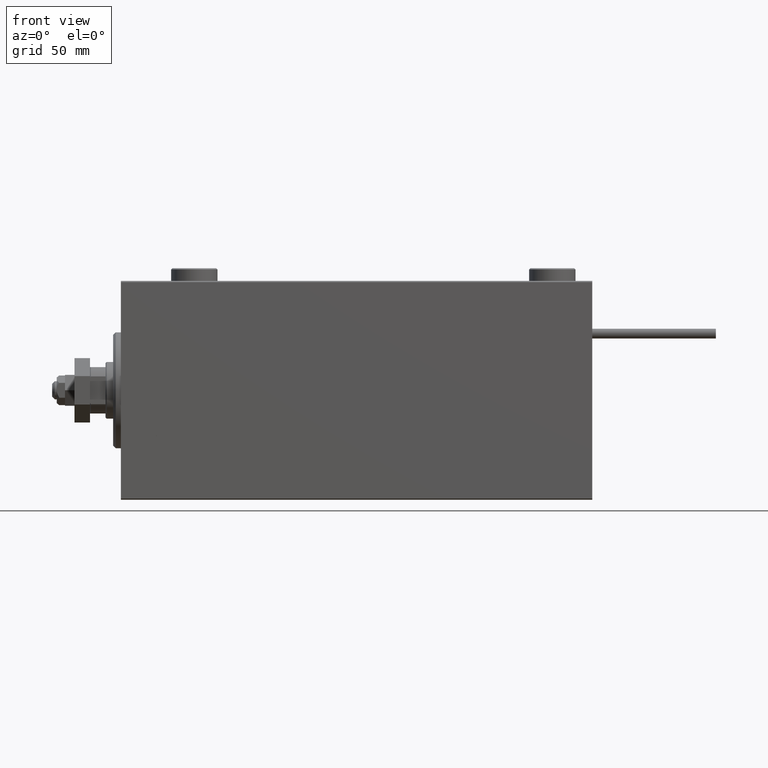
[diagram: clean part render]
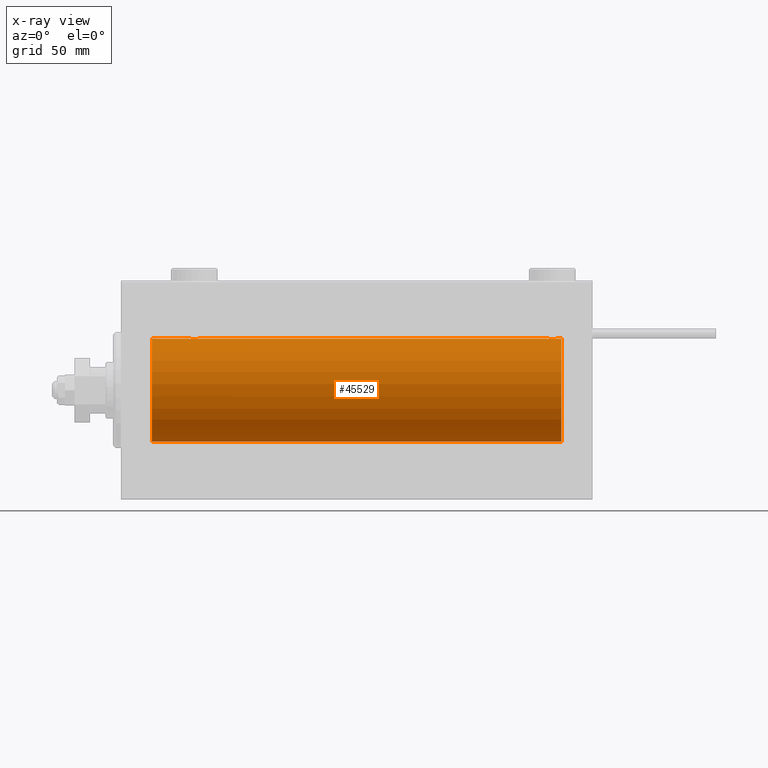
[diagram: x-ray — body ghosted, one internal face saturated and labeled with its STEP entity id]
A machine part, front view, then the same camera in x-ray: the body is ghosted and one INTERNAL B-rep face — a face not visible from any outside direction — is saturated and labeled: STEP entity #45529.
In plain terms, the highlighted cylindrical surface (partial cylindrical patch) has radius 20 mm, axis along (-1, -0, -0).
Its self-contained STEP definition (entity closure, byte-faithful):
#136 = CARTESIAN_POINT ( 'NONE',  ( 168.7180541947215033, -1.591668229360197806, 19.93669678979812687 ) ) ;
#769 = CARTESIAN_POINT ( 'NONE',  ( 29.14348528733041377, -1.898187925611340310, 19.90978194174746818 ) ) ;
#813 = CARTESIAN_POINT ( 'NONE',  ( 30.09941524884030173, -1.228758402364235502, -19.96307487248084911 ) ) ;
#1298 = CARTESIAN_POINT ( 'NONE',  ( 30.24686976303071617, -1.008108445278690146, 19.97602680192586533 ) ) ;
#1554 = CARTESIAN_POINT ( 'NONE',  ( 30.49999999999997868, -0.2644051013330948052, 19.99999999999999645 ) ) ;
#1907 = EDGE_CURVE ( 'NONE', #30042, #47258, #42240, .T. ) ;
#1925 = DIRECTION ( 'NONE',  ( -1.000000000000000000, -0.000000000000000000, -0.000000000000000000 ) ) ;
#2769 = CARTESIAN_POINT ( 'NONE',  ( 171.0000000000000000, 2.449293598294706513E-15, -20.00000000000000000 ) ) ;
#2909 = CARTESIAN_POINT ( 'NONE',  ( 26.50000000000000355, -3.809869420541414000E-15, -20.00000000000000000 ) ) ;
#3097 = CARTESIAN_POINT ( 'NONE',  ( 166.2819458052784398, -1.591668229360214903, -19.93669678979811977 ) ) ;
#3291 = DIRECTION ( 'NONE',  ( -1.000000000000000000, -0.000000000000000000, -0.000000000000000000 ) ) ;
#3359 = CARTESIAN_POINT ( 'NONE',  ( 168.1463067392464268, -1.897222639860608906, -19.90987429971496070 ) ) ;
#3595 = CARTESIAN_POINT ( 'NONE',  ( 165.4999999999999716, -1.553188236289650144E-23, 20.00000000000000000 ) ) ;
#3610 = CARTESIAN_POINT ( 'NONE',  ( 167.7607725603156439, -1.987205673487804747, 19.90104673894209952 ) ) ;
#4114 = VERTEX_POINT ( 'NONE', #51336 ) ;
#4131 = CARTESIAN_POINT ( 'NONE',  ( 168.1434852873303782, -1.898187925611334093, 19.90978194174746463 ) ) ;
#4665 = CARTESIAN_POINT ( 'NONE',  ( 166.1769333108053104, -1.505486175075775979, 19.94347168299867690 ) ) ;
#5013 = CARTESIAN_POINT ( 'NONE',  ( 27.17693331080530683, -1.505486175075772426, 19.94347168299868045 ) ) ;
#5057 = CARTESIAN_POINT ( 'NONE',  ( 29.82306668919470383, -1.505486175075772870, -19.94347168299867334 ) ) ;
#5270 = CARTESIAN_POINT ( 'NONE',  ( 28.63058871710834552, -2.000100592782554809, 19.89973863218036598 ) ) ;
#5536 = CARTESIAN_POINT ( 'NONE',  ( 29.71805419472151044, -1.591668229360198028, 19.93669678979812332 ) ) ;
#5714 = EDGE_CURVE ( 'NONE', #12869, #18876, #31375, .T. ) ;
#5802 = CARTESIAN_POINT ( 'NONE',  ( 27.27971054205536205, -1.589957321664209111, 19.93683391378736403 ) ) ;
#5848 = CARTESIAN_POINT ( 'NONE',  ( 26.90225308445269903, -1.230936344679278260, -19.96293863536309132 ) ) ;
#6194 = DIRECTION ( 'NONE',  ( -1.000000000000000000, 0.000000000000000000, 0.000000000000000000 ) ) ;
#6368 = CARTESIAN_POINT ( 'NONE',  ( 26.50000000000001066, -0.2644051013331030209, -20.00000000000000355 ) ) ;
#6959 = VERTEX_POINT ( 'NONE', #7240 ) ;
#7240 = CARTESIAN_POINT ( 'NONE',  ( 12.00000000000001066, 2.449293598294706513E-15, -20.00000000000000000 ) ) ;
#7355 = CARTESIAN_POINT ( 'NONE',  ( 168.5030655633959782, -1.735203193119897014, -19.92471783160911158 ) ) ;
#7838 = LINE ( 'NONE', #32258, #8569 ) ;
#7866 = CARTESIAN_POINT ( 'NONE',  ( 167.3663480385754667, -1.999898234284060772, 19.89975896996866211 ) ) ;
#8132 = CARTESIAN_POINT ( 'NONE',  ( 165.4999999999999716, -0.2610801504281912711, 19.99999999999999645 ) ) ;
#8152 = CARTESIAN_POINT ( 'NONE',  ( 166.9835146708108766, -1.936551476643014080, -19.90603968831098669 ) ) ;
#8569 = VECTOR ( 'NONE', #28534, 1000.000000000000000 ) ;
#8652 = AXIS2_PLACEMENT_3D ( 'NONE', #24307, #37043, #36258 ) ;
#8800 = CARTESIAN_POINT ( 'NONE',  ( 30.24825913460018612, -1.005710574260838985, -19.97614991974274190 ) ) ;
#8911 = CARTESIAN_POINT ( 'NONE',  ( 168.3857907667072595, -1.797933656607912489, 19.91908554465557657 ) ) ;
#9010 = CARTESIAN_POINT ( 'NONE',  ( 27.98076487864723205, -1.935816449315125531, 19.90611141657401717 ) ) ;
#9375 = LINE ( 'NONE', #10177, #31927 ) ;
#9540 = CARTESIAN_POINT ( 'NONE',  ( 30.44679484191798124, -0.5270924491156734337, 19.99450181871975829 ) ) ;
#9683 = VERTEX_POINT ( 'NONE', #28027 ) ;
#10076 = CARTESIAN_POINT ( 'NONE',  ( 27.61170562792908711, -1.796691196322317996, 19.91919800395357143 ) ) ;
#10177 = CARTESIAN_POINT ( 'NONE',  ( 171.0000000000000000, 0.000000000000000000, 20.00000000000000000 ) ) ;
#10368 = CIRCLE ( 'NONE', #35784, 20.00000000000000000 ) ;
#10382 = CARTESIAN_POINT ( 'NONE',  ( 26.75313023696928738, -1.008108445278687704, -19.97602680192586533 ) ) ;
#10469 = ORIENTED_EDGE ( 'NONE', *, *, #32610, .F. ) ;
#11082 = CARTESIAN_POINT ( 'NONE',  ( 165.4999999999999716, -1.510525576716094838E-14, -20.00000000000000000 ) ) ;
#11357 = CARTESIAN_POINT ( 'NONE',  ( 165.5532051580820223, -0.5270924491156762093, -19.99450181871976184 ) ) ;
#12199 = EDGE_CURVE ( 'NONE', #18876, #6959, #7838, .T. ) ;
#12869 = VERTEX_POINT ( 'NONE', #45425 ) ;
#13192 = CARTESIAN_POINT ( 'NONE',  ( 30.50000000000000000, -6.994834070630008937E-15, 20.00000000000000000 ) ) ;
#14099 = CARTESIAN_POINT ( 'NONE',  ( 27.17903093152710525, -1.507328959728492457, -19.94333197382385592 ) ) ;
#14386 = ORIENTED_EDGE ( 'NONE', *, *, #48821, .T. ) ;
#14563 = LINE ( 'NONE', #43503, #39702 ) ;
#14809 = CARTESIAN_POINT ( 'NONE',  ( 169.0994152488403302, -1.228758402364252822, -19.96307487248083845 ) ) ;
#15611 = CARTESIAN_POINT ( 'NONE',  ( 167.7635814409141233, -1.986835489085827966, -19.90108393514800511 ) ) ;
#16044 = CARTESIAN_POINT ( 'NONE',  ( 26.50000000000000355, -1.552636033655995435E-23, 20.00000000000000000 ) ) ;
#16372 = CARTESIAN_POINT ( 'NONE',  ( 166.8536932607535448, -1.897222639860593363, 19.90987429971496780 ) ) ;
#16684 = B_SPLINE_CURVE_WITH_KNOTS ( 'NONE', 3,
 ( #28024, #8132, #37055, #41039, #40520, #4665, #45051, #40783, #33082, #16372, #20347, #20863, #7866, #32819, #3610, #48516, #4131, #8911, #44259, #136, #24846, #52494, #16889, #24060, #20079, #49300 ),
 .UNSPECIFIED., .F., .F.,
 ( 4, 2, 2, 2, 2, 2, 2, 2, 2, 2, 2, 2, 4 ),
 ( 0.006256819553329837080, 0.007038738568778794141, 0.007820657584227751202, 0.008211617091952229733, 0.008602576599676708263, 0.008993536107401185059, 0.009384495615125663590, 0.009775455122850142120, 0.01016641463057462239, 0.01055737413829909918, 0.01094833364602357945, 0.01173025266147259202, 0.01251217167692160633 ),
 .UNSPECIFIED. ) ;
#16889 = CARTESIAN_POINT ( 'NONE',  ( 169.2468697630307020, -1.008108445278671050, 19.97602680192585822 ) ) ;
#16898 = CIRCLE ( 'NONE', #23556, 20.00000000000000000 ) ;
#17256 = CARTESIAN_POINT ( 'NONE',  ( 26.50000000000000711, -0.2610801504281919927, 20.00000000000000000 ) ) ;
#17260 = VECTOR ( 'NONE', #48267, 1000.000000000000000 ) ;
#17771 = CARTESIAN_POINT ( 'NONE',  ( 30.09774691554729742, -1.230936344679279371, 19.96293863536309487 ) ) ;
#17855 = EDGE_CURVE ( 'NONE', #28303, #4114, #31309, .T. ) ;
#18876 = VERTEX_POINT ( 'NONE', #2909 ) ;
#18948 = DIRECTION ( 'NONE',  ( 0.000000000000000000, 0.000000000000000000, 1.000000000000000000 ) ) ;
#19093 = ORIENTED_EDGE ( 'NONE', *, *, #33720, .F. ) ;
#19576 = CARTESIAN_POINT ( 'NONE',  ( 167.2392274396842424, -1.987205673487821178, -19.90104673894210308 ) ) ;
#19642 = ORIENTED_EDGE ( 'NONE', *, *, #30125, .F. ) ;
#19856 = DIRECTION ( 'NONE',  ( -1.000000000000000000, -0.000000000000000000, -0.000000000000000000 ) ) ;
#19907 = LINE ( 'NONE', #20432, #37120 ) ;
#20079 = CARTESIAN_POINT ( 'NONE',  ( 169.5000000000000000, -0.2644051013331001898, 20.00000000000000355 ) ) ;
#20347 = CARTESIAN_POINT ( 'NONE',  ( 166.9807648786472782, -1.935816449315131527, 19.90611141657401717 ) ) ;
#20432 = CARTESIAN_POINT ( 'NONE',  ( 171.0000000000000000, 0.000000000000000000, 20.00000000000000000 ) ) ;
#20863 = CARTESIAN_POINT ( 'NONE',  ( 167.2364185590859051, -1.986835489085816198, 19.90108393514801222 ) ) ;
#21216 = CARTESIAN_POINT ( 'NONE',  ( 29.50067219139244301, -1.736582545981377290, 19.92459705242981371 ) ) ;
#21262 = CARTESIAN_POINT ( 'NONE',  ( 29.72028945794465571, -1.589957321664208223, -19.93683391378736047 ) ) ;
#21479 = CARTESIAN_POINT ( 'NONE',  ( 29.38579076670729151, -1.797933656607919817, 19.91908554465558367 ) ) ;
#21740 = CARTESIAN_POINT ( 'NONE',  ( 30.50000000000000000, -6.994834070630008937E-15, 20.00000000000000000 ) ) ;
#22056 = CARTESIAN_POINT ( 'NONE',  ( 27.49932780860757475, -1.736582545981376180, -19.92459705242981371 ) ) ;
#22551 = VERTEX_POINT ( 'NONE', #51710 ) ;
#22574 = CARTESIAN_POINT ( 'NONE',  ( 27.85651471266959334, -1.898187925611338533, -19.90978194174746818 ) ) ;
#22747 = VERTEX_POINT ( 'NONE', #3595 ) ;
#23488 = LINE ( 'NONE', #2769, #36617 ) ;
#23556 = AXIS2_PLACEMENT_3D ( 'NONE', #50330, #6194, #18948 ) ;
#23817 = CARTESIAN_POINT ( 'NONE',  ( 168.8230666891946896, -1.505486175075791966, -19.94347168299867690 ) ) ;
#24060 = CARTESIAN_POINT ( 'NONE',  ( 169.4467948419179493, -0.5270924491156545599, 19.99450181871975829 ) ) ;
#24078 = CARTESIAN_POINT ( 'NONE',  ( 167.6336519614244764, -1.999898234284076981, -19.89975896996866211 ) ) ;
#24307 = CARTESIAN_POINT ( 'NONE',  ( 171.0000000000000000, 0.000000000000000000, 0.000000000000000000 ) ) ;
#24318 = EDGE_CURVE ( 'NONE', #22747, #22551, #16684, .T. ) ;
#24563 = ORIENTED_EDGE ( 'NONE', *, *, #12199, .T. ) ;
#24846 = CARTESIAN_POINT ( 'NONE',  ( 168.8209690684728628, -1.507328959728491347, 19.94333197382385592 ) ) ;
#25461 = CARTESIAN_POINT ( 'NONE',  ( 27.49693443660397563, -1.735203193119895460, 19.92471783160911869 ) ) ;
#25724 = CARTESIAN_POINT ( 'NONE',  ( 28.76077256031568297, -1.987205673487810298, 19.90104673894211018 ) ) ;
#25766 = CARTESIAN_POINT ( 'NONE',  ( 169.4999999999999432, -0.2610801504281899388, -19.99999999999999645 ) ) ;
#25770 = CARTESIAN_POINT ( 'NONE',  ( 28.63365196142448355, -1.999898234284062992, -19.89975896996866211 ) ) ;
#26025 = CARTESIAN_POINT ( 'NONE',  ( 28.76358144091416236, -1.986835489085814199, -19.90108393514801222 ) ) ;
#26307 = ORIENTED_EDGE ( 'NONE', *, *, #5714, .T. ) ;
#28024 = CARTESIAN_POINT ( 'NONE',  ( 165.4999999999999716, -1.553188236289650144E-23, 20.00000000000000000 ) ) ;
#28027 = CARTESIAN_POINT ( 'NONE',  ( 12.00000000000001066, 0.000000000000000000, 20.00000000000000000 ) ) ;
#28043 = CARTESIAN_POINT ( 'NONE',  ( 165.7531302369692980, -1.008108445278692589, -19.97602680192585822 ) ) ;
#28286 = FACE_OUTER_BOUND ( 'NONE', #45667, .T. ) ;
#28303 = VERTEX_POINT ( 'NONE', #44316 ) ;
#28315 = CARTESIAN_POINT ( 'NONE',  ( 168.7202894579446593, -1.589957321664208001, -19.93683391378736403 ) ) ;
#28534 = DIRECTION ( 'NONE',  ( -1.000000000000000000, -0.000000000000000000, -0.000000000000000000 ) ) ;
#29477 = CARTESIAN_POINT ( 'NONE',  ( 27.61420923329272981, -1.797933656607917596, -19.91908554465558367 ) ) ;
#29808 = CARTESIAN_POINT ( 'NONE',  ( 12.00000000000001066, 0.000000000000000000, 0.000000000000000000 ) ) ;
#30042 = VERTEX_POINT ( 'NONE', #16044 ) ;
#30125 = EDGE_CURVE ( 'NONE', #35438, #22551, #9375, .T. ) ;
#30269 = CARTESIAN_POINT ( 'NONE',  ( 26.55320515808203297, -0.5270924491156698810, -19.99450181871976184 ) ) ;
#30561 = ORIENTED_EDGE ( 'NONE', *, *, #49413, .T. ) ;
#31309 = LINE ( 'NONE', #43285, #17260 ) ;
#31375 = B_SPLINE_CURVE_WITH_KNOTS ( 'NONE', 3,
 ( #39693, #45197, #41445, #8800, #813, #5057, #21262, #37465, #31449, #47695, #41983, #26025, #25770, #42245, #34275, #50505, #22574, #29477, #22056, #41709, #14099, #5848, #10382, #30269, #6368, #50754 ),
 .UNSPECIFIED., .F., .F.,
 ( 4, 2, 2, 2, 2, 2, 2, 2, 2, 2, 2, 2, 4 ),
 ( 0.006256819553329842284, 0.007038738568778818427, 0.007820657584227792836, 0.008211617091952278305, 0.008602576599676762040, 0.008993536107401245774, 0.009384495615125729509, 0.009775455122850213244, 0.01016641463057469871, 0.01055737413829918071, 0.01094833364602366618, 0.01173025266147263365, 0.01251217167692159939 ),
 .UNSPECIFIED. ) ;
#31449 = CARTESIAN_POINT ( 'NONE',  ( 29.38829437207091999, -1.796691196322316664, -19.91919800395357143 ) ) ;
#31927 = VECTOR ( 'NONE', #1925, 1000.000000000000000 ) ;
#32258 = CARTESIAN_POINT ( 'NONE',  ( 171.0000000000000000, 2.449293598294706513E-15, -20.00000000000000000 ) ) ;
#32610 = EDGE_CURVE ( 'NONE', #30042, #9683, #19907, .T. ) ;
#32819 = CARTESIAN_POINT ( 'NONE',  ( 167.6305887171083668, -2.000100592782551701, 19.89973863218036598 ) ) ;
#33082 = CARTESIAN_POINT ( 'NONE',  ( 166.6117056279290694, -1.796691196322314443, 19.91919800395357143 ) ) ;
#33486 = CARTESIAN_POINT ( 'NONE',  ( 169.4999999999999716, 2.449293582762473501E-15, -20.00000000000000000 ) ) ;
#33699 = CARTESIAN_POINT ( 'NONE',  ( 29.01648532918904522, -1.936551476643006087, 19.90603968831098314 ) ) ;
#33720 = EDGE_CURVE ( 'NONE', #22747, #47258, #14563, .T. ) ;
#34072 = DIRECTION ( 'NONE',  ( -1.000000000000000000, 0.000000000000000000, 0.000000000000000000 ) ) ;
#34227 = CARTESIAN_POINT ( 'NONE',  ( 26.90058475115969472, -1.228758402364234392, 19.96307487248084556 ) ) ;
#34275 = CARTESIAN_POINT ( 'NONE',  ( 28.23922743968432059, -1.987205673487808966, -19.90104673894211018 ) ) ;
#34986 = CARTESIAN_POINT ( 'NONE',  ( 169.4475506288250415, -0.5243189001515055070, -19.99457699142850231 ) ) ;
#35249 = CARTESIAN_POINT ( 'NONE',  ( 168.3882943720709022, -1.796691196322330653, -19.91919800395357143 ) ) ;
#35393 = ORIENTED_EDGE ( 'NONE', *, *, #17855, .T. ) ;
#35438 = VERTEX_POINT ( 'NONE', #44156 ) ;
#35462 = ORIENTED_EDGE ( 'NONE', *, *, #36193, .F. ) ;
#35503 = CARTESIAN_POINT ( 'NONE',  ( 166.1790309315270804, -1.507328959728508666, -19.94333197382385947 ) ) ;
#35784 = AXIS2_PLACEMENT_3D ( 'NONE', #29808, #34072, #50306 ) ;
#36095 = DIRECTION ( 'NONE',  ( -1.000000000000000000, -0.000000000000000000, -0.000000000000000000 ) ) ;
#36193 = EDGE_CURVE ( 'NONE', #28303, #35438, #16898, .T. ) ;
#36258 = DIRECTION ( 'NONE',  ( 0.000000000000000000, 0.000000000000000000, 1.000000000000000000 ) ) ;
#36617 = VECTOR ( 'NONE', #3291, 1000.000000000000000 ) ;
#37043 = DIRECTION ( 'NONE',  ( -1.000000000000000000, -0.000000000000000000, -0.000000000000000000 ) ) ;
#37055 = CARTESIAN_POINT ( 'NONE',  ( 165.5524493711749301, -0.5243189001515013992, 19.99457699142850231 ) ) ;
#37120 = VECTOR ( 'NONE', #36095, 1000.000000000000000 ) ;
#37157 = CARTESIAN_POINT ( 'NONE',  ( 28.36634803857552001, -1.999898234284063436, 19.89975896996866211 ) ) ;
#37465 = CARTESIAN_POINT ( 'NONE',  ( 29.50306556339602437, -1.735203193119894349, -19.92471783160910803 ) ) ;
#37683 = CARTESIAN_POINT ( 'NONE',  ( 29.82096906847289830, -1.507328959728492901, 19.94333197382385592 ) ) ;
#38210 = CARTESIAN_POINT ( 'NONE',  ( 26.50000000000000355, -1.552636033655995435E-23, 20.00000000000000000 ) ) ;
#39693 = CARTESIAN_POINT ( 'NONE',  ( 30.50000000000000000, 2.449293582768389958E-15, -20.00000000000000000 ) ) ;
#39702 = VECTOR ( 'NONE', #19856, 1000.000000000000000 ) ;
#39993 = CYLINDRICAL_SURFACE ( 'NONE', #8652, 20.00000000000000000 ) ;
#40019 = CARTESIAN_POINT ( 'NONE',  ( 165.5000000000000284, -0.2644051013331212840, -20.00000000000000000 ) ) ;
#40520 = CARTESIAN_POINT ( 'NONE',  ( 165.9005847511596698, -1.228758402364239499, 19.96307487248084556 ) ) ;
#40783 = CARTESIAN_POINT ( 'NONE',  ( 166.4969344366039934, -1.735203193119897236, 19.92471783160911514 ) ) ;
#41039 = CARTESIAN_POINT ( 'NONE',  ( 165.7517408653997677, -1.005710574260841650, 19.97614991974273835 ) ) ;
#41445 = CARTESIAN_POINT ( 'NONE',  ( 30.44755062882508412, -0.5243189001514996228, -19.99457699142849876 ) ) ;
#41661 = CARTESIAN_POINT ( 'NONE',  ( 27.85369326075355545, -1.897222639860595583, 19.90987429971497491 ) ) ;
#41709 = CARTESIAN_POINT ( 'NONE',  ( 27.28194580527848601, -1.591668229360197140, -19.93669678979812332 ) ) ;
#41983 = CARTESIAN_POINT ( 'NONE',  ( 29.01923512135276795, -1.935816449315124643, -19.90611141657401717 ) ) ;
#42009 = VERTEX_POINT ( 'NONE', #50289 ) ;
#42198 = CARTESIAN_POINT ( 'NONE',  ( 26.75174086539981033, -1.005710574260840318, 19.97614991974274190 ) ) ;
#42240 = B_SPLINE_CURVE_WITH_KNOTS ( 'NONE', 3,
 ( #38210, #17256, #45673, #42198, #34227, #5013, #5802, #25461, #10076, #41661, #9010, #45938, #37157, #5270, #25724, #33699, #769, #21479, #21216, #5536, #37683, #17771, #1298, #9540, #1554, #21740 ),
 .UNSPECIFIED., .F., .F.,
 ( 4, 2, 2, 2, 2, 2, 2, 2, 2, 2, 2, 2, 4 ),
 ( 0.006256819553329787641, 0.007038738568778755977, 0.007820657584227725181, 0.008211617091952205447, 0.008602576599676685712, 0.008993536107401164242, 0.009384495615125644508, 0.009775455122850124773, 0.01016641463057460504, 0.01055737413829908530, 0.01094833364602356557, 0.01173025266147252610, 0.01251217167692148663 ),
 .UNSPECIFIED. ) ;
#42245 = CARTESIAN_POINT ( 'NONE',  ( 28.36941128289166159, -2.000100592782553921, -19.89973863218036598 ) ) ;
#43285 = CARTESIAN_POINT ( 'NONE',  ( 171.0000000000000000, 2.449293598294706513E-15, -20.00000000000000000 ) ) ;
#43485 = CARTESIAN_POINT ( 'NONE',  ( 166.8565147126695649, -1.898187925611359850, -19.90978194174746463 ) ) ;
#43503 = CARTESIAN_POINT ( 'NONE',  ( 171.0000000000000000, 0.000000000000000000, 20.00000000000000000 ) ) ;
#43753 = CARTESIAN_POINT ( 'NONE',  ( 167.3694112828916616, -2.000100592782568576, -19.89973863218036243 ) ) ;
#44077 = ORIENTED_EDGE ( 'NONE', *, *, #1907, .T. ) ;
#44156 = CARTESIAN_POINT ( 'NONE',  ( 171.0000000000000000, 0.000000000000000000, 20.00000000000000000 ) ) ;
#44259 = CARTESIAN_POINT ( 'NONE',  ( 168.5006721913923684, -1.736582545981374404, 19.92459705242980306 ) ) ;
#44316 = CARTESIAN_POINT ( 'NONE',  ( 171.0000000000000000, 2.449293598294706513E-15, -20.00000000000000000 ) ) ;
#45051 = CARTESIAN_POINT ( 'NONE',  ( 166.2797105420553123, -1.589957321664211998, 19.93683391378736403 ) ) ;
#45197 = CARTESIAN_POINT ( 'NONE',  ( 30.49999999999999645, -0.2610801504281900498, -19.99999999999999645 ) ) ;
#45425 = CARTESIAN_POINT ( 'NONE',  ( 30.50000000000000000, 2.449293582768389958E-15, -20.00000000000000000 ) ) ;
#45438 = ORIENTED_EDGE ( 'NONE', *, *, #24318, .T. ) ;
#45529 = ADVANCED_FACE ( 'NONE', ( #28286 ), #39993, .F. ) ;
#45667 = EDGE_LOOP ( 'NONE', ( #35462, #35393, #30561, #14386, #26307, #24563, #50017, #10469, #44077, #19093, #45438, #19642 ) ) ;
#45673 = CARTESIAN_POINT ( 'NONE',  ( 26.55244937117492299, -0.5243189001515012881, 19.99457699142850586 ) ) ;
#45938 = CARTESIAN_POINT ( 'NONE',  ( 28.23641855908585185, -1.986835489085814643, 19.90108393514801222 ) ) ;
#47258 = VERTEX_POINT ( 'NONE', #13192 ) ;
#47695 = CARTESIAN_POINT ( 'NONE',  ( 29.14630673924643744, -1.897222639860594029, -19.90987429971496780 ) ) ;
#48015 = CARTESIAN_POINT ( 'NONE',  ( 166.4993278086076032, -1.736582545981393277, -19.92459705242980661 ) ) ;
#48267 = DIRECTION ( 'NONE',  ( -1.000000000000000000, -0.000000000000000000, -0.000000000000000000 ) ) ;
#48271 = CARTESIAN_POINT ( 'NONE',  ( 165.9022530844526671, -1.230936344679295136, -19.96293863536308422 ) ) ;
#48516 = CARTESIAN_POINT ( 'NONE',  ( 168.0164853291890381, -1.936551476642997649, 19.90603968831098669 ) ) ;
#48535 = CARTESIAN_POINT ( 'NONE',  ( 168.0192351213528070, -1.935816449315140408, -19.90611141657402072 ) ) ;
#48821 = EDGE_CURVE ( 'NONE', #42009, #12869, #23488, .T. ) ;
#49045 = EDGE_CURVE ( 'NONE', #6959, #9683, #10368, .T. ) ;
#49300 = CARTESIAN_POINT ( 'NONE',  ( 169.4999999999999716, 6.344962748519499734E-15, 20.00000000000000000 ) ) ;
#49413 = EDGE_CURVE ( 'NONE', #4114, #42009, #50944, .T. ) ;
#50017 = ORIENTED_EDGE ( 'NONE', *, *, #49045, .T. ) ;
#50289 = CARTESIAN_POINT ( 'NONE',  ( 165.4999999999999716, -1.510525576716094838E-14, -20.00000000000000000 ) ) ;
#50306 = DIRECTION ( 'NONE',  ( 0.000000000000000000, 0.000000000000000000, 1.000000000000000000 ) ) ;
#50330 = CARTESIAN_POINT ( 'NONE',  ( 171.0000000000000000, 0.000000000000000000, 0.000000000000000000 ) ) ;
#50505 = CARTESIAN_POINT ( 'NONE',  ( 27.98351467081095123, -1.936551476643005198, -19.90603968831098314 ) ) ;
#50754 = CARTESIAN_POINT ( 'NONE',  ( 26.50000000000000355, -3.809869420541414000E-15, -20.00000000000000000 ) ) ;
#50944 = B_SPLINE_CURVE_WITH_KNOTS ( 'NONE', 3,
 ( #33486, #25766, #34986, #51216, #14809, #23817, #28315, #7355, #35249, #3359, #48535, #15611, #24078, #43753, #19576, #8152, #43485, #52003, #48015, #3097, #35503, #48271, #28043, #11357, #40019, #11082 ),
 .UNSPECIFIED., .F., .F.,
 ( 4, 2, 2, 2, 2, 2, 2, 2, 2, 2, 2, 2, 4 ),
 ( 0.006256819553329819733, 0.007038738568778733426, 0.007820657584227647119, 0.008211617091952132588, 0.008602576599676618058, 0.008993536107401105262, 0.009384495615125590731, 0.009775455122850077935, 0.01016641463057456340, 0.01055737413829905061, 0.01094833364602353781, 0.01173025266147256773, 0.01251217167692160112 ),
 .UNSPECIFIED. ) ;
#51216 = CARTESIAN_POINT ( 'NONE',  ( 169.2482591346001470, -1.005710574260847645, -19.97614991974274190 ) ) ;
#51336 = CARTESIAN_POINT ( 'NONE',  ( 169.4999999999999716, 2.449293582762473501E-15, -20.00000000000000000 ) ) ;
#51710 = CARTESIAN_POINT ( 'NONE',  ( 169.4999999999999716, 6.344962748519499734E-15, 20.00000000000000000 ) ) ;
#52003 = CARTESIAN_POINT ( 'NONE',  ( 166.6142092332927405, -1.797933656607938691, -19.91908554465557657 ) ) ;
#52494 = CARTESIAN_POINT ( 'NONE',  ( 169.0977469155472761, -1.230936344679278704, 19.96293863536309132 ) ) ;